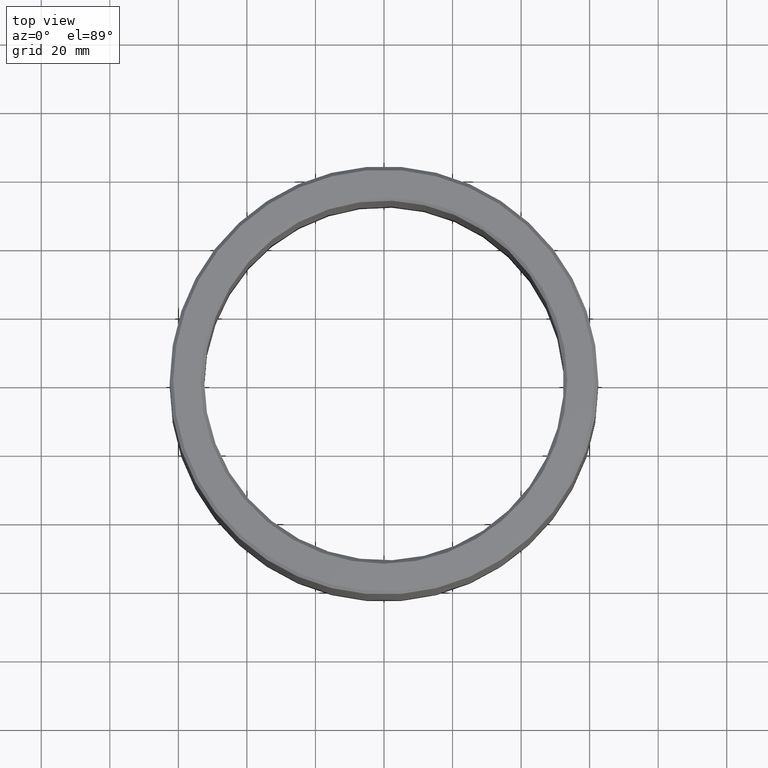
[diagram: clean part render]
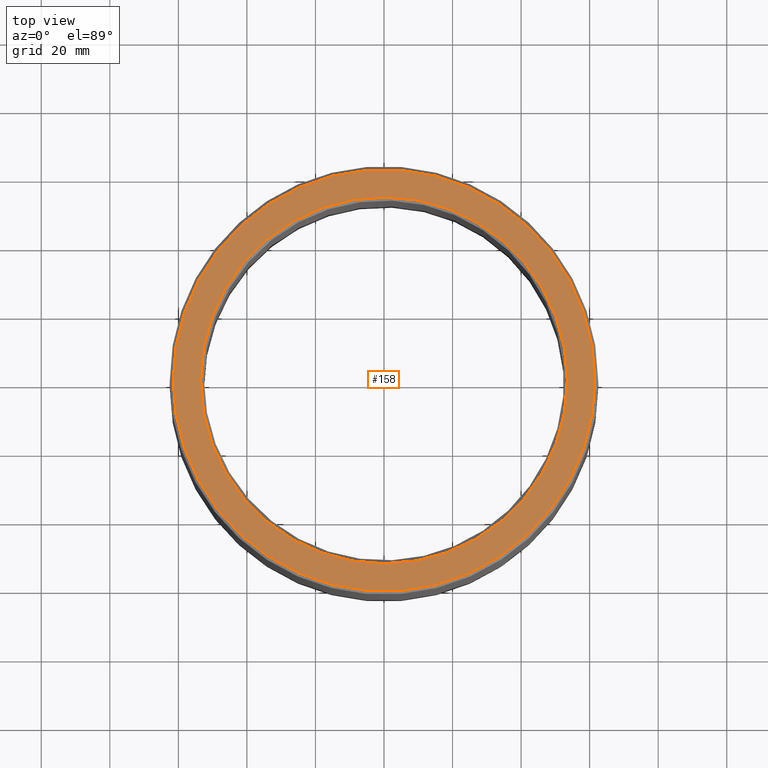
[diagram: same view with one face highlighted and labeled with its STEP entity id]
A machine part, top view. The second image highlights one B-rep face of the part: STEP entity #158.
In plain terms, the highlighted planar face has unit normal (0, -0, 1).
Its self-contained STEP definition (entity closure, byte-faithful):
#158=ADVANCED_FACE('',(#180,#181),#182,.T.);
#180=FACE_BOUND('',#2760,.T.);
#181=FACE_OUTER_BOUND('',#2761,.T.);
#182=PLANE('',#2762);
#2760=EDGE_LOOP('',(#5361));
#2761=EDGE_LOOP('',(#5362));
#2762=AXIS2_PLACEMENT_3D('',#5363,#5364,#5365);
#5361=ORIENTED_EDGE('',*,*,#5414,.T.);
#5362=ORIENTED_EDGE('',*,*,#5415,.F.);
#5363=CARTESIAN_POINT('',(0.0615,6.93889390390723E-018,0.12));
#5364=DIRECTION('',(0.0,6.12323399573677E-017,1.0));
#5365=DIRECTION('',(0.0,-1.0,6.12323399573677E-017));
#5414=EDGE_CURVE('',#5444,#5444,#5445,.T.);
#5415=EDGE_CURVE('',#5446,#5446,#5447,.T.);
#5444=VERTEX_POINT('',#5716);
#5445=CIRCLE('',#5717,0.0535);
#5446=VERTEX_POINT('',#5718);
#5447=CIRCLE('',#5719,0.0615);
#5716=CARTESIAN_POINT('',(0.0,0.0535,0.12));
#5717=AXIS2_PLACEMENT_3D('',#5750,#5751,#5752);
#5718=CARTESIAN_POINT('',(0.0,0.0615,0.12));
#5719=AXIS2_PLACEMENT_3D('',#5753,#5754,#5755);
#5750=CARTESIAN_POINT('',(0.0,6.93889390390723E-018,0.12));
#5751=DIRECTION('',(0.0,-6.12323399573677E-017,-1.0));
#5752=DIRECTION('',(0.0,1.0,-6.12323399573677E-017));
#5753=CARTESIAN_POINT('',(0.0,6.93889390390723E-018,0.12));
#5754=DIRECTION('',(0.0,-6.12323399573677E-017,-1.0));
#5755=DIRECTION('',(0.0,1.0,-6.12323399573677E-017));